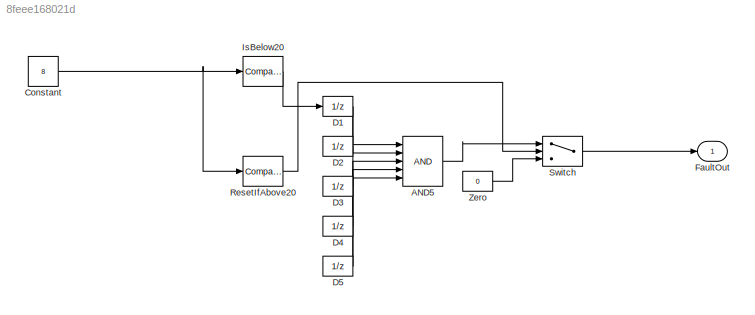
MODEL slx_8feee168021d
KIND model
CONFIG AbsTol = auto
CONFIG EnableMultiTasking = off
CONFIG FixedStep = auto
CONFIG MaxStep = auto
CONFIG MinStep = auto
CONFIG RelTol = 1e-3
CONFIG SampleTimeConstraint = Unconstrained
CONFIG SolverName = VariableStepAuto
CONFIG StartTime = 0.0
CONFIG StopTime = 10.0
BLOCK [Logic] AND5
  AllPortsSameDT = off
  Inputs = 5
  OutDataTypeStr = boolean
BLOCK [Constant] Constant
  Value = 8
BLOCK [UnitDelay] D1
  HasFrameUpgradeWarning = on
  SampleTime = -1
BLOCK [UnitDelay] D2
  HasFrameUpgradeWarning = on
  SampleTime = -1
BLOCK [UnitDelay] D3
  HasFrameUpgradeWarning = on
  SampleTime = -1
BLOCK [UnitDelay] D4
  HasFrameUpgradeWarning = on
  SampleTime = -1
BLOCK [UnitDelay] D5
  HasFrameUpgradeWarning = on
  SampleTime = -1
BLOCK [Outport] FaultOut
BLOCK [Reference] IsBelow20  REF=simulink/Logic and Bit
Operations/Compare
To Constant
  SourceBlock = simulink/Logic and Bit\nOperations/Compare\nTo Constant
  SourceType = Compare To Constant
BLOCK [Reference] ResetIfAbove20  REF=simulink/Logic and Bit
Operations/Compare
To Constant
  SourceBlock = simulink/Logic and Bit\nOperations/Compare\nTo Constant
  SourceType = Compare To Constant
BLOCK [Switch] Switch
  Criteria = u2 ~= 0
  InputSameDT = off
  SaturateOnIntegerOverflow = off
  Threshold = 0.5
BLOCK [Constant] Zero
  Value = 0
LINE AND5:1 -> Switch:1
NET Constant:1 -> IsBelow20:1, ResetIfAbove20:1
NET D1:1 -> AND5:1, D2:1
NET D2:1 -> AND5:2, D3:1
NET D3:1 -> AND5:3, D4:1
NET D4:1 -> AND5:4, D5:1
LINE D5:1 -> AND5:5
LINE IsBelow20:1 -> D1:1
LINE ResetIfAbove20:1 -> Switch:2
LINE Switch:1 -> FaultOut:1
LINE Zero:1 -> Switch:3
note: NET lines group one-source signal fan-out (src -> all destinations, sorted); 1:1 wires keep LINE
